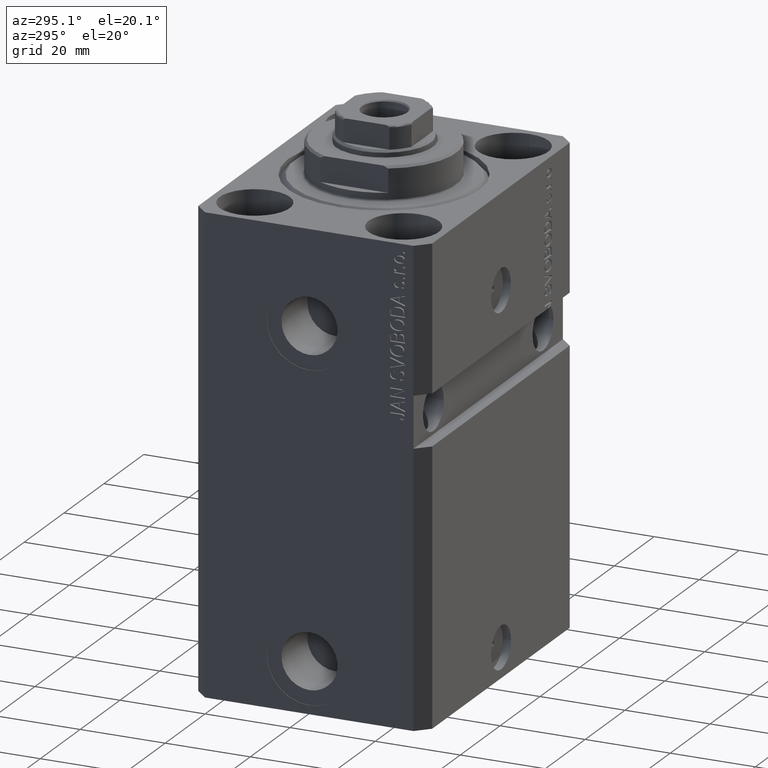
[diagram: clean part render]
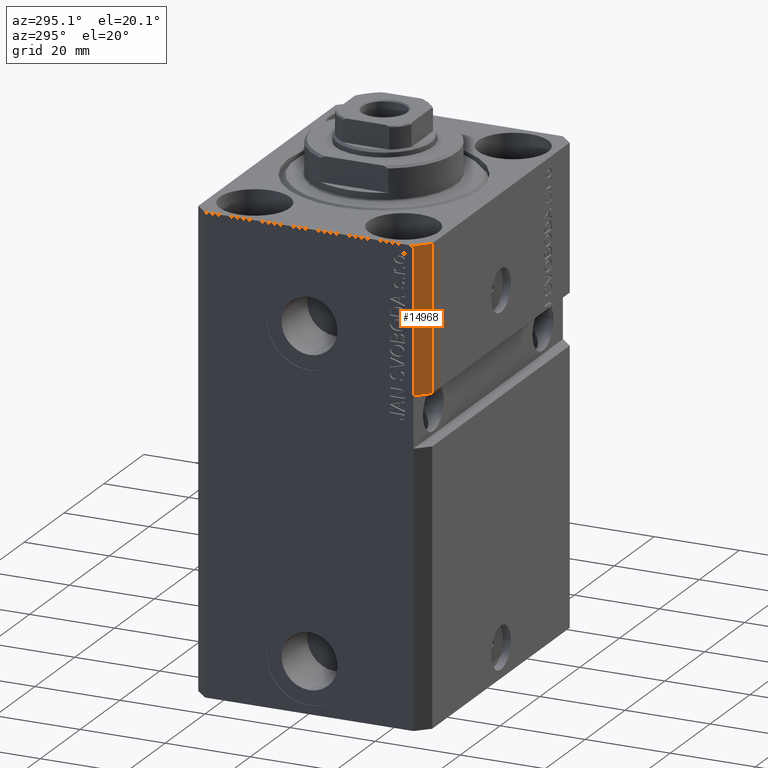
[diagram: same view with one face highlighted and labeled with its STEP entity id]
A machine part, auxiliary view. The second image highlights one B-rep face of the part: STEP entity #14968.
In plain terms, the highlighted planar face has unit normal (-0.7071, -0.7071, 0).
Its self-contained STEP definition (entity closure, byte-faithful):
#886 = EDGE_CURVE ( 'NONE', #18634, #37341, #37345, .T. ) ;
#1224 = PLANE ( 'NONE',  #3376 ) ;
#2202 = CARTESIAN_POINT ( 'NONE',  ( -37.49999999999999289, -24.50000000000000000, 0.000000000000000000 ) ) ;
#3133 = VERTEX_POINT ( 'NONE', #9342 ) ;
#3376 = AXIS2_PLACEMENT_3D ( 'NONE', #28426, #12120, #35753 ) ;
#5515 = VECTOR ( 'NONE', #9065, 1000.000000000000000 ) ;
#8451 = DIRECTION ( 'NONE',  ( 0.7071067811865483499, -0.7071067811865466846, 0.000000000000000000 ) ) ;
#9065 = DIRECTION ( 'NONE',  ( 0.000000000000000000, 0.000000000000000000, 1.000000000000000000 ) ) ;
#9342 = CARTESIAN_POINT ( 'NONE',  ( -34.49999999999998579, -27.50000000000000000, -34.00000000000000000 ) ) ;
#9743 = VERTEX_POINT ( 'NONE', #34076 ) ;
#10602 = ORIENTED_EDGE ( 'NONE', *, *, #886, .F. ) ;
#11945 = CARTESIAN_POINT ( 'NONE',  ( -34.49999999999998579, -27.49999999999999645, -110.0000000000000000 ) ) ;
#12120 = DIRECTION ( 'NONE',  ( -0.7071067811865466846, -0.7071067811865483499, 0.000000000000000000 ) ) ;
#14388 = ORIENTED_EDGE ( 'NONE', *, *, #23837, .F. ) ;
#14450 = LINE ( 'NONE', #14885, #19951 ) ;
#14720 = EDGE_CURVE ( 'NONE', #3133, #9743, #36462, .T. ) ;
#14885 = CARTESIAN_POINT ( 'NONE',  ( -37.50000000000000711, -24.49999999999998934, -34.00000000000001421 ) ) ;
#14968 = ADVANCED_FACE ( 'NONE', ( #31750 ), #1224, .T. ) ;
#15281 = CARTESIAN_POINT ( 'NONE',  ( -37.50000000000000000, -24.50000000000000000, -34.00000000000000000 ) ) ;
#15351 = LINE ( 'NONE', #2202, #39178 ) ;
#15472 = ORIENTED_EDGE ( 'NONE', *, *, #14720, .T. ) ;
#18634 = VERTEX_POINT ( 'NONE', #15281 ) ;
#19123 = EDGE_LOOP ( 'NONE', ( #29955, #15472, #14388, #10602 ) ) ;
#19951 = VECTOR ( 'NONE', #35389, 1000.000000000000000 ) ;
#19976 = DIRECTION ( 'NONE',  ( 0.000000000000000000, 0.000000000000000000, 1.000000000000000000 ) ) ;
#23837 = EDGE_CURVE ( 'NONE', #37341, #9743, #15351, .T. ) ;
#28426 = CARTESIAN_POINT ( 'NONE',  ( -37.49999999999999289, -24.50000000000000000, -110.0000000000000000 ) ) ;
#29955 = ORIENTED_EDGE ( 'NONE', *, *, #32350, .F. ) ;
#30622 = CARTESIAN_POINT ( 'NONE',  ( -37.49999999999999289, -24.50000000000000000, 0.000000000000000000 ) ) ;
#31750 = FACE_OUTER_BOUND ( 'NONE', #19123, .T. ) ;
#32350 = EDGE_CURVE ( 'NONE', #3133, #18634, #14450, .T. ) ;
#33995 = CARTESIAN_POINT ( 'NONE',  ( -37.49999999999999289, -24.50000000000000000, -110.0000000000000000 ) ) ;
#34076 = CARTESIAN_POINT ( 'NONE',  ( -34.49999999999998579, -27.49999999999999645, 0.000000000000000000 ) ) ;
#35389 = DIRECTION ( 'NONE',  ( -0.7071067811865483499, 0.7071067811865466846, -1.962615573354721115E-16 ) ) ;
#35753 = DIRECTION ( 'NONE',  ( 0.7071067811865483499, -0.7071067811865466846, 0.000000000000000000 ) ) ;
#36462 = LINE ( 'NONE', #11945, #5515 ) ;
#37341 = VERTEX_POINT ( 'NONE', #30622 ) ;
#37345 = LINE ( 'NONE', #33995, #42249 ) ;
#39178 = VECTOR ( 'NONE', #8451, 1000.000000000000000 ) ;
#42249 = VECTOR ( 'NONE', #19976, 1000.000000000000000 ) ;